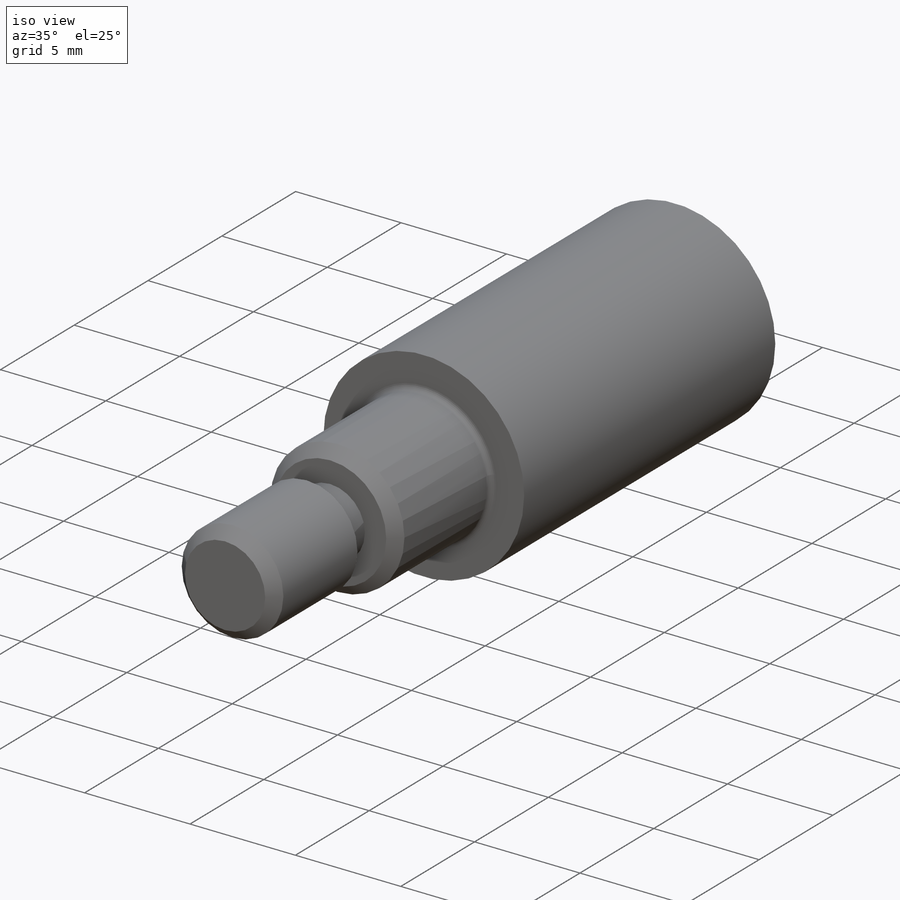
[diagram: iso view]
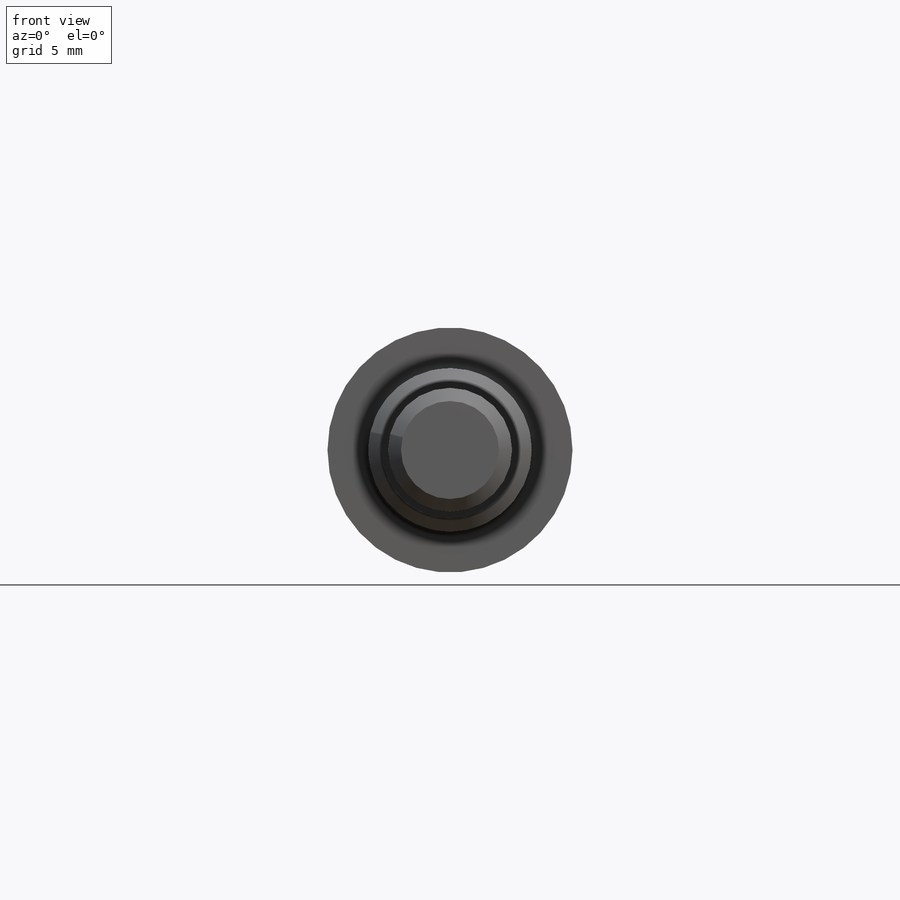
[diagram: front view]
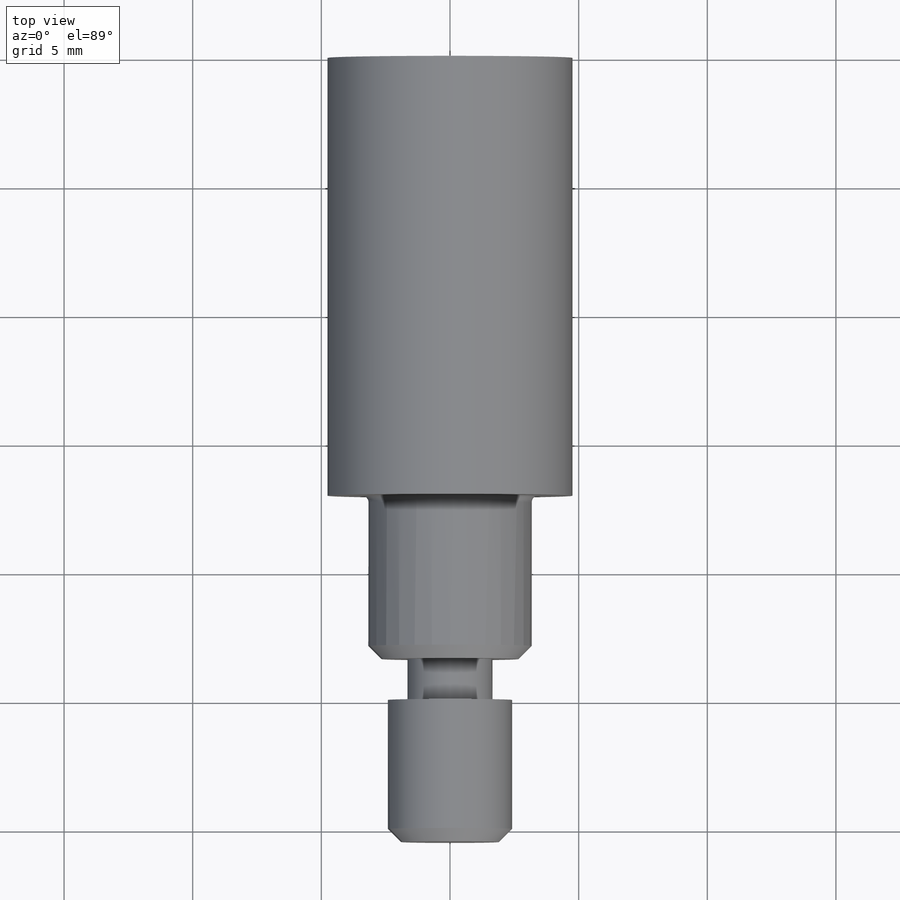
[diagram: top view]
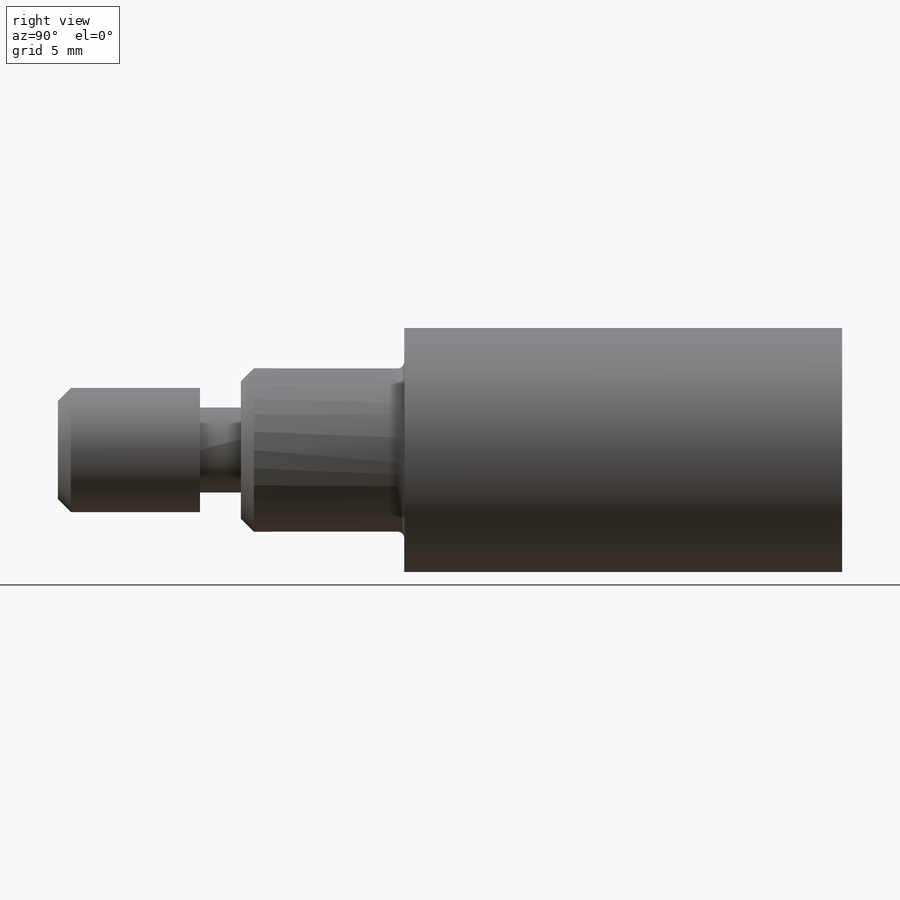
[diagram: right view]
SOLIDWORKS PART (.sldprt)
format: sldprt  version: not decoded by parser v0  size: 297,984 bytes
history: native  units: mm
features: sketch x7, extrude x3, chamfer x3, thread x2, fillet x2, material x1, cut_extrude x1, hole x1, cut_revolve x1 (+13 scaffold rows collapsed)
feature tree (34):
  scaffold x13  (default folders/planes/origin — collapsed)
  material  "AISI 1020 Steel, Cold Rolled"
  sketch  "Sketch1"  dims[D1=9.525mm]
  extrude  "Boss-Extrude1"  Depth=17.018mm
  sketch  "Sketch2"  dims[D1=6.35mm]
  extrude  "Boss-Extrude2"  Depth=6.35mm
  sketch  "Sketch4"  dims[D1=~1.816253mm]
  extrude  "Boss-Extrude3"  [1 undecoded]
  thread  "Cosmetic Thread1"  Diameter=3.56616mm  [1 undecoded]
  sketch  "Sketch5"  dims[D1=6.3881mm]
  cut_extrude  "Cut-Extrude2"  Depth=5.842mm
  chamfer  "Chamfer1"  Distance=0.254mm Angle=45deg
  fillet  "Fillet1"  Radius=0.254mm
  chamfer  "Chamfer2"  Distance=0.508mm Angle=45deg
  hole  "#10-24 Tapped Hole1"  Diameter=3.7973mm Depth=8.89mm
  sketch  "Sketch9"
  sketch  "Sketch8"  dims[hole-wizard template sketch: 47 standard entries collapsed; hole parameters kept: c15.Tap Drill Depth=8.89mm c15.D3=~14.816244mm c15.Drill Angle=118.0deg]
  thread  "Hole Thread1"  Diameter=8.382mm  [1 undecoded]
  chamfer  "Chamfer3"  Distance=0.508mm Angle=45deg
  sketch  "Sketch10"  dims[D1=2.413mm D2=1.5875mm D3=0.762mm]
  cut_revolve  "Cut-Revolve1"  Angle=360deg
  fillet  "Fillet2"  Radius=0.254mm
decode coverage: 18 of 20 modeling features carry decoded parameters
note: ~ marks probable driven/reference dimensions
note: 3 parameter values undecoded
note: suppression state not decoded; provenance and decode notes live in map.json
